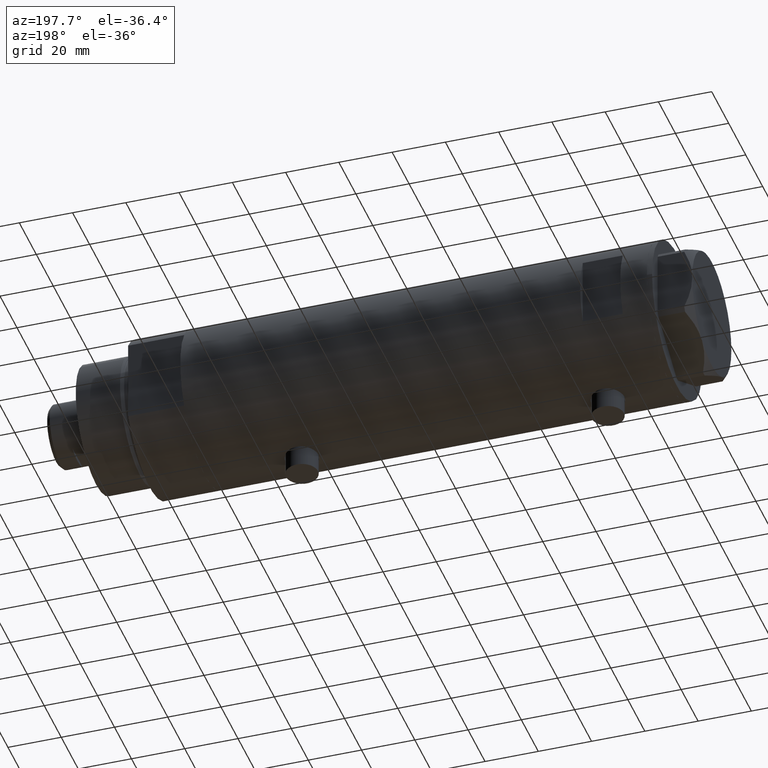
[diagram: clean part render]
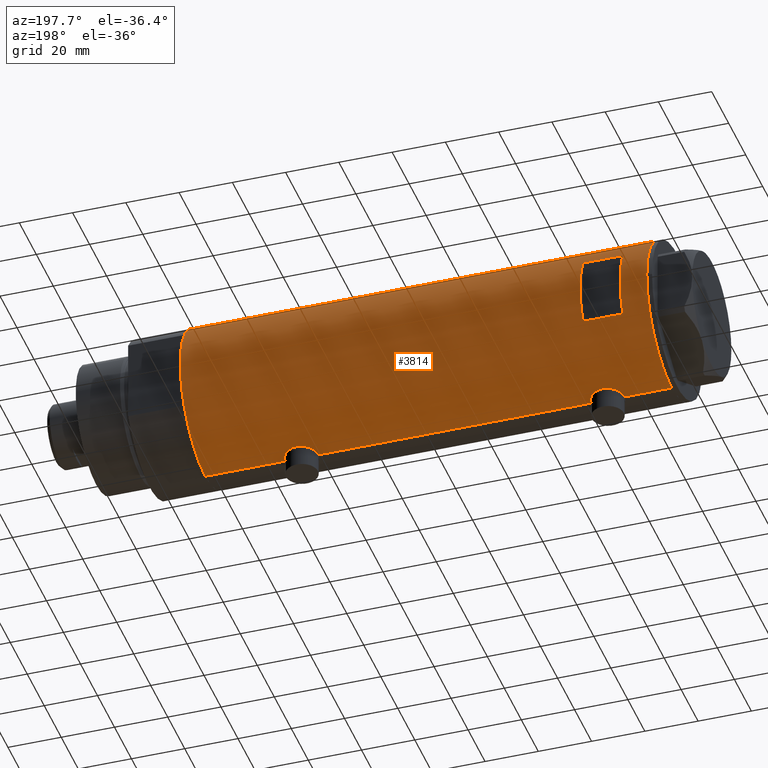
[diagram: same view with one face highlighted and labeled with its STEP entity id]
A machine part, auxiliary view. The second image highlights one B-rep face of the part: STEP entity #3814.
In plain terms, the highlighted cylindrical surface (partial cylindrical patch) has radius 29.5 mm, axis along (-1, -0, 0).
Its self-contained STEP definition (entity closure, byte-faithful):
#14 = VERTEX_POINT ( 'NONE', #2019 ) ;
#22 = LINE ( 'NONE', #2042, #1520 ) ;
#28 = CARTESIAN_POINT ( 'NONE',  ( -29.50000000000000355, 3.612706708267620518E-15, -57.55000000000000426 ) ) ;
#31 = CARTESIAN_POINT ( 'NONE',  ( 28.59637095282950270, 7.245897747848927040, 65.14872625722391319 ) ) ;
#32 = CARTESIAN_POINT ( 'NONE',  ( -29.37156641804198642, 2.775801885207113351, -45.68527430293367786 ) ) ;
#41 = EDGE_CURVE ( 'NONE', #1257, #3119, #2979, .T. ) ;
#52 = CARTESIAN_POINT ( 'NONE',  ( 29.50000000000000355, 0.2453482418156841816, 74.59999999999999432 ) ) ;
#53 = CARTESIAN_POINT ( 'NONE',  ( -28.94521404191311831, 5.694822755760264421, -53.88333046401345428 ) ) ;
#64 = EDGE_CURVE ( 'NONE', #4237, #1002, #198, .T. ) ;
#78 = CARTESIAN_POINT ( 'NONE',  ( 29.47533087885488712, 1.230190383163952239, 74.50252131767059893 ) ) ;
#79 = CARTESIAN_POINT ( 'NONE',  ( -28.83925158138408307, 6.209208576703538540, 62.77801617131193979 ) ) ;
#81 = CARTESIAN_POINT ( 'NONE',  ( -29.21045586191521082, 4.133246019522343495, -46.59426098433518604 ) ) ;
#104 = CARTESIAN_POINT ( 'NONE',  ( -28.87327190949138256, 6.049038945481236773, 61.97548271794827457 ) ) ;
#117 = CARTESIAN_POINT ( 'NONE',  ( 28.77649569280672992, 6.494415104660914650, 70.85934988816623559 ) ) ;
#118 = CARTESIAN_POINT ( 'NONE',  ( -28.99931529802531927, 5.412890550536861412, 60.46870800944782331 ) ) ;
#135 = CARTESIAN_POINT ( 'NONE',  ( -29.48289442777306846, 1.024392307325223905, 57.43111777471300883 ) ) ;
#154 = CARTESIAN_POINT ( 'NONE',  ( 29.48742029994219038, 0.9867701249543437969, -55.85094507494218163 ) ) ;
#162 = CARTESIAN_POINT ( 'NONE',  ( -29.48933702067640539, 0.8192029158410146783, 57.40049277733301381 ) ) ;
#163 = CARTESIAN_POINT ( 'NONE',  ( -29.50000000000000355, 3.612706708267620518E-15, -57.55000000000000426 ) ) ;
#164 = CARTESIAN_POINT ( 'NONE',  ( -29.50000000000000355, -3.685106651658548747E-16, 69.84999999999999432 ) ) ;
#188 = CARTESIAN_POINT ( 'NONE',  ( 29.08204711695421452, 4.951923910293528408, -54.03816021594297325 ) ) ;
#198 = CIRCLE ( 'NONE', #4027, 29.50000000000000355 ) ;
#209 = CARTESIAN_POINT ( 'NONE',  ( 29.47533087885489067, 1.230190383163956458, -40.99747868232940817 ) ) ;
#214 = AXIS2_PLACEMENT_3D ( 'NONE', #532, #1917, #4012 ) ;
#260 = CARTESIAN_POINT ( 'NONE',  ( 28.63233008736633778, 7.102474189478610533, -50.82185131238886555 ) ) ;
#269 = CARTESIAN_POINT ( 'NONE',  ( 29.48742029994219394, 0.9867701249543444630, 59.64905492505780416 ) ) ;
#279 = CARTESIAN_POINT ( 'NONE',  ( -29.45614208737133310, 1.620034288692375535, 69.63988643911609699 ) ) ;
#282 = ORIENTED_EDGE ( 'NONE', *, *, #3927, .T. ) ;
#308 = B_SPLINE_CURVE_WITH_KNOTS ( 'NONE', 3,
 ( #2743, #3381, #989, #2648, #279, #4428, #1333, #1033, #2703, #640, #2032, #665, #3784, #2056, #3428, #1717, #1132, #3872, #1590, #3323, #1781, #412, #79, #104, #2765, #2265, #458, #118, #1522, #2492, #2184, #798, #3245, #1562, #456, #3531, #492, #1484, #3950, #135, #162, #3578, #1860, #3217 ),
 .UNSPECIFIED., .F., .F.,
 ( 4, 2, 2, 2, 2, 2, 2, 2, 2, 2, 2, 2, 2, 2, 2, 2, 2, 2, 2, 2, 2, 4 ),
 ( 3.579711039243685734E-19, 0.001224749128302344029, 0.001837123692453515285, 0.002449498256604686758, 0.003674247384907013657, 0.004898996513209340556, 0.006123745641511668322, 0.007348494769813995221, 0.007960869333965159972, 0.008573243898116323855, 0.009797993026418609988, 0.01102274215472089959, 0.01224749128302318572, 0.01285986584717433920, 0.01347224041132549614, 0.01469698953962781697, 0.01592173866793014300, 0.01653411323208130515, 0.01714648779623246730, 0.01837123692453479160, 0.01898361148868595721, 0.01959598605283711936 ),
 .UNSPECIFIED. ) ;
#312 = DIRECTION ( 'NONE',  ( 1.000000000000000000, 0.000000000000000000, 0.000000000000000000 ) ) ;
#336 = ORIENTED_EDGE ( 'NONE', *, *, #64, .F. ) ;
#343 = CARTESIAN_POINT ( 'NONE',  ( 29.31463363472445849, 3.333180401682676930, 60.36343155316954068 ) ) ;
#360 = CARTESIAN_POINT ( 'NONE',  ( -29.50000000000000355, 3.612708057484692393E-15, -87.59999999999999432 ) ) ;
#388 = CARTESIAN_POINT ( 'NONE',  ( 29.50000000000000355, -8.867894669064240341E-21, 74.59999999999999432 ) ) ;
#389 = CARTESIAN_POINT ( 'NONE',  ( -29.01875661852155019, 5.308007315944003324, -54.60588370000890279 ) ) ;
#390 = B_SPLINE_CURVE_WITH_KNOTS ( 'NONE', 3,
 ( #4094, #4118, #269, #1663, #2070, #597, #2380, #343, #1731, #1000, #4418, #4079, #983, #3732, #633, #659, #2020, #1694, #3423, #31, #1844, #1780, #1104, #2475, #4187, #3846, #3200, #3464, #1801, #117, #1441, #2841, #2447, #3512, #3137, #699, #1503, #730, #4141, #2156, #1049, #78, #3487, #1485, #52, #388 ),
 .UNSPECIFIED., .F., .F.,
 ( 4, 2, 2, 2, 2, 2, 2, 2, 2, 2, 2, 2, 2, 2, 2, 2, 2, 2, 2, 2, 2, 2, 4 ),
 ( 2.075019889373263572E-18, 0.001471587963626213007, 0.002207381945439318427, 0.002943175927252423846, 0.004414763890878631650, 0.005150557872691736636, 0.005886351854504842489, 0.007357939818131036848, 0.008829527781757228605, 0.009565321763570345734, 0.01030111574538346113, 0.01177270370900965375, 0.01324429167263584638, 0.01471587963626204074, 0.01545167361807513358, 0.01618746759988822989, 0.01692326158170132794, 0.01765905556351441905, 0.01913064352714058391, 0.02060223149076674184, 0.02207381945439290671, 0.02280961343620598394, 0.02354540741801906811 ),
 .UNSPECIFIED. ) ;
#394 = EDGE_CURVE ( 'NONE', #2227, #14, #1330, .T. ) ;
#412 = CARTESIAN_POINT ( 'NONE',  ( -28.83028740688047620, 6.250162243045986443, 63.19353934091626002 ) ) ;
#436 = CARTESIAN_POINT ( 'NONE',  ( -28.86473101544359210, 6.089252369705496548, -49.87667050833969284 ) ) ;
#449 = CARTESIAN_POINT ( 'NONE',  ( 29.38138226830144006, 2.652609128011935269, -55.41954601959671578 ) ) ;
#456 = CARTESIAN_POINT ( 'NONE',  ( -29.33379699751450431, 3.132328395749495620, 58.18767835513889253 ) ) ;
#458 = CARTESIAN_POINT ( 'NONE',  ( -28.96258065965881912, 5.606121065329691788, 60.82948014931239555 ) ) ;
#472 = CARTESIAN_POINT ( 'NONE',  ( 12.96148139681573319, 26.49999999999999645, -87.59999999999999432 ) ) ;
#473 = CARTESIAN_POINT ( 'NONE',  ( -29.38727827406290416, 2.583363936682823603, -56.99478026128668517 ) ) ;
#492 = CARTESIAN_POINT ( 'NONE',  ( -29.38727827406289705, 2.583363936682820938, 57.90521973871332051 ) ) ;
#510 = CARTESIAN_POINT ( 'NONE',  ( 29.26131531204081426, 3.767377415172554311, -41.89654697428871799 ) ) ;
#515 = DIRECTION ( 'NONE',  ( 1.000000000000000000, -1.776356839400250267E-15, 0.000000000000000000 ) ) ;
#532 = CARTESIAN_POINT ( 'NONE',  ( 0.000000000000000000, 0.000000000000000000, -87.59999999999999432 ) ) ;
#535 = CARTESIAN_POINT ( 'NONE',  ( -12.96148139681574030, 26.50000000000000355, 62.60000000000001563 ) ) ;
#539 = CARTESIAN_POINT ( 'NONE',  ( -29.12318177724206691, 4.709191267490247412, -55.42971050241654751 ) ) ;
#557 = LINE ( 'NONE', #472, #1587 ) ;
#563 = CARTESIAN_POINT ( 'NONE',  ( -29.48289442777307201, 1.024392307325228124, -57.46888222528699686 ) ) ;
#565 = DIRECTION ( 'NONE',  ( 0.000000000000000000, 0.000000000000000000, 1.000000000000000000 ) ) ;
#577 = FACE_BOUND ( 'NONE', #1560, .T. ) ;
#581 = VERTEX_POINT ( 'NONE', #3719 ) ;
#590 = EDGE_CURVE ( 'NONE', #3221, #3844, #308, .T. ) ;
#597 = CARTESIAN_POINT ( 'NONE',  ( 29.40165444879503909, 2.418426732012822544, 59.99632943565210041 ) ) ;
#633 = CARTESIAN_POINT ( 'NONE',  ( 28.89325003604224307, 5.958922200807243996, 62.51915213504485536 ) ) ;
#640 = CARTESIAN_POINT ( 'NONE',  ( -29.25454443288368722, 3.812919888526638879, 68.56897379180909979 ) ) ;
#649 = DIRECTION ( 'NONE',  ( 0.000000000000000000, 0.000000000000000000, 1.000000000000000000 ) ) ;
#659 = CARTESIAN_POINT ( 'NONE',  ( 28.77473834757382321, 6.507156404236264180, 63.33837315939705093 ) ) ;
#665 = CARTESIAN_POINT ( 'NONE',  ( -29.12335997091252793, 4.707903814166463974, 67.73078007378802567 ) ) ;
#699 = CARTESIAN_POINT ( 'NONE',  ( 29.08308069045667565, 4.954707331652127955, 72.75173628376771262 ) ) ;
#730 = CARTESIAN_POINT ( 'NONE',  ( 29.26131531204080360, 3.767377415172555644, 73.60345302571126069 ) ) ;
#731 = CARTESIAN_POINT ( 'NONE',  ( -29.50000000000000355, -1.989795151372050188E-15, -45.04999999999999005 ) ) ;
#737 = DIRECTION ( 'NONE',  ( 0.000000000000000000, 0.000000000000000000, 1.000000000000000000 ) ) ;
#769 = CARTESIAN_POINT ( 'NONE',  ( 29.50000000000000355, 0.000000000000000000, -87.59999999999999432 ) ) ;
#793 = DIRECTION ( 'NONE',  ( 0.000000000000000000, 0.000000000000000000, 1.000000000000000000 ) ) ;
#798 = CARTESIAN_POINT ( 'NONE',  ( -29.21113960567726764, 4.128622307952521275, 58.88985466616444597 ) ) ;
#802 = CARTESIAN_POINT ( 'NONE',  ( -29.12335997091253148, 4.707903814166472856, -47.16921992621198001 ) ) ;
#824 = CARTESIAN_POINT ( 'NONE',  ( 29.50000000000000355, 0.000000000000000000, 87.59999999999999432 ) ) ;
#889 = CARTESIAN_POINT ( 'NONE',  ( -29.07940225710134996, 4.969011347753393260, -55.11269734470185000 ) ) ;
#902 = CARTESIAN_POINT ( 'NONE',  ( 28.95590528945748687, 5.641861744747095564, -43.45235088071117246 ) ) ;
#918 = CARTESIAN_POINT ( 'NONE',  ( 28.59637095282950625, 7.245897747848926151, -50.35127374277608681 ) ) ;
#943 = CARTESIAN_POINT ( 'NONE',  ( 28.62953349941190240, 7.116010646391488947, -45.98020539076898672 ) ) ;
#970 = CARTESIAN_POINT ( 'NONE',  ( 28.89325003604224307, 5.958922200807236891, -52.98084786495515175 ) ) ;
#983 = CARTESIAN_POINT ( 'NONE',  ( 29.05056090758569098, 5.132790299589558458, 61.62608273347917276 ) ) ;
#989 = CARTESIAN_POINT ( 'NONE',  ( -29.49128627113591605, 0.8212788586050359108, 69.80923124908871102 ) ) ;
#1000 = CARTESIAN_POINT ( 'NONE',  ( 29.17471722935868073, 4.373569479501278501, 61.00231157590981468 ) ) ;
#1002 = VERTEX_POINT ( 'NONE', #535 ) ;
#1033 = CARTESIAN_POINT ( 'NONE',  ( -29.37156641804199708, 2.775801885207113795, 69.21472569706632783 ) ) ;
#1049 = CARTESIAN_POINT ( 'NONE',  ( 29.43913092143246146, 1.954882548385545649, 74.35749234733351898 ) ) ;
#1052 = VERTEX_POINT ( 'NONE', #1379 ) ;
#1099 = EDGE_CURVE ( 'NONE', #1946, #1908, #22, .T. ) ;
#1104 = CARTESIAN_POINT ( 'NONE',  ( 28.53073993742369296, 7.499791908386148620, 66.60538051566959439 ) ) ;
#1127 = CARTESIAN_POINT ( 'NONE',  ( -28.96085629491409108, 5.616414220648541011, -48.52800360409992209 ) ) ;
#1132 = CARTESIAN_POINT ( 'NONE',  ( -28.90008889585329044, 5.919338933253946777, 65.61640207058047736 ) ) ;
#1134 = CARTESIAN_POINT ( 'NONE',  ( 29.50000000000000355, -8.867894669064240341E-21, 74.59999999999999432 ) ) ;
#1157 = LINE ( 'NONE', #769, #4256 ) ;
#1185 = CARTESIAN_POINT ( 'NONE',  ( -29.48933702067641249, 0.8192029158410176759, -57.49950722266699898 ) ) ;
#1205 = CARTESIAN_POINT ( 'NONE',  ( -29.37021410611214378, 2.770135525807589261, -56.90634069022830488 ) ) ;
#1212 = CARTESIAN_POINT ( 'NONE',  ( 28.98787507734748914, 5.475789924529796515, -43.26910956623376592 ) ) ;
#1238 = CARTESIAN_POINT ( 'NONE',  ( 29.50000000000000711, 0.2453482418156837930, -40.89999999999999858 ) ) ;
#1242 = CARTESIAN_POINT ( 'NONE',  ( 29.50000000000000355, -8.867894669064240341E-21, -40.89999999999999858 ) ) ;
#1257 = VERTEX_POINT ( 'NONE', #1134 ) ;
#1260 = CYLINDRICAL_SURFACE ( 'NONE', #214, 29.50000000000000355 ) ;
#1279 = CARTESIAN_POINT ( 'NONE',  ( 28.59328333056173221, 7.258376466535469085, -46.44875332515167798 ) ) ;
#1328 = ORIENTED_EDGE ( 'NONE', *, *, #3555, .F. ) ;
#1330 = LINE ( 'NONE', #2678, #3885 ) ;
#1333 = CARTESIAN_POINT ( 'NONE',  ( -29.41782704931130255, 2.208494778271264725, 69.45038297927175108 ) ) ;
#1372 = VERTEX_POINT ( 'NONE', #2576 ) ;
#1379 = CARTESIAN_POINT ( 'NONE',  ( 12.96148139681573319, 26.49999999999998934, 77.60000000000002274 ) ) ;
#1388 = AXIS2_PLACEMENT_3D ( 'NONE', #1633, #2584, #515 ) ;
#1394 = ORIENTED_EDGE ( 'NONE', *, *, #2202, .F. ) ;
#1410 = VERTEX_POINT ( 'NONE', #3037 ) ;
#1441 = CARTESIAN_POINT ( 'NONE',  ( 28.80468126786726302, 6.368639251981137228, 71.06860510682068366 ) ) ;
#1464 = CIRCLE ( 'NONE', #4049, 29.50000000000000355 ) ;
#1465 = VECTOR ( 'NONE', #649, 1000.000000000000000 ) ;
#1484 = CARTESIAN_POINT ( 'NONE',  ( -29.43341305963175003, 2.016871341298210663, 57.67025331001193678 ) ) ;
#1485 = CARTESIAN_POINT ( 'NONE',  ( 29.49693976195335665, 0.4910732786937788696, 74.58799094295621046 ) ) ;
#1486 = ORIENTED_EDGE ( 'NONE', *, *, #1099, .T. ) ;
#1487 = CARTESIAN_POINT ( 'NONE',  ( -29.07990598238133373, 4.966177878631063081, -47.48314968353489718 ) ) ;
#1498 = CARTESIAN_POINT ( 'NONE',  ( 29.17471722935868428, 4.373569479501278501, -54.49768842409016401 ) ) ;
#1503 = CARTESIAN_POINT ( 'NONE',  ( 29.14546206473281487, 4.578181670952602644, 73.06056091603291236 ) ) ;
#1504 = CARTESIAN_POINT ( 'NONE',  ( -28.87539346372184212, 6.038655803256923527, -49.67547335916925988 ) ) ;
#1520 = VECTOR ( 'NONE', #2686, 1000.000000000000000 ) ;
#1522 = CARTESIAN_POINT ( 'NONE',  ( -29.01875661852155019, 5.308007315944000659, 60.29411629999106736 ) ) ;
#1526 = CARTESIAN_POINT ( 'NONE',  ( -29.49787850362430675, 0.4089683628077651623, -57.54001026437015298 ) ) ;
#1545 = CARTESIAN_POINT ( 'NONE',  ( -29.43341305963175714, 2.016871341298211551, -57.22974668998805470 ) ) ;
#1553 = CARTESIAN_POINT ( 'NONE',  ( 28.77473834757381610, 6.507156404236260627, -52.16162684060293486 ) ) ;
#1560 = EDGE_LOOP ( 'NONE', ( #4445, #336, #1328, #1394 ) ) ;
#1562 = CARTESIAN_POINT ( 'NONE',  ( -29.31451746246149881, 3.307268797680012806, 58.29285158014997137 ) ) ;
#1571 = CARTESIAN_POINT ( 'NONE',  ( 28.80468126786726657, 6.368639251981141669, -44.43139489317929502 ) ) ;
#1587 = VECTOR ( 'NONE', #2286, 1000.000000000000000 ) ;
#1590 = CARTESIAN_POINT ( 'NONE',  ( -28.86473101544358499, 6.089252369705491219, 65.02332949166031995 ) ) ;
#1628 = CARTESIAN_POINT ( 'NONE',  ( 28.95615051861771860, 5.649234316505054032, -53.35715418746725192 ) ) ;
#1633 = CARTESIAN_POINT ( 'NONE',  ( 0.000000000000000000, 0.000000000000000000, 77.60000000000002274 ) ) ;
#1663 = CARTESIAN_POINT ( 'NONE',  ( 29.45150476095192360, 1.707859807438202315, 59.79292881343939570 ) ) ;
#1685 = CARTESIAN_POINT ( 'NONE',  ( -12.96148139681573319, 26.49999999999999645, -87.59999999999999432 ) ) ;
#1694 = CARTESIAN_POINT ( 'NONE',  ( 28.65280969280607692, 7.019670864411689415, 64.44786831316889675 ) ) ;
#1698 = DIRECTION ( 'NONE',  ( 0.000000000000000000, 0.000000000000000000, 1.000000000000000000 ) ) ;
#1702 = ORIENTED_EDGE ( 'NONE', *, *, #4096, .T. ) ;
#1717 = CARTESIAN_POINT ( 'NONE',  ( -28.91416466586725420, 5.850419487802255070, 65.80827647633630306 ) ) ;
#1728 = EDGE_CURVE ( 'NONE', #3119, #2939, #2823, .T. ) ;
#1729 = VECTOR ( 'NONE', #565, 1000.000000000000000 ) ;
#1731 = CARTESIAN_POINT ( 'NONE',  ( 29.26187100173485334, 3.763222966830670480, 60.59401741939379349 ) ) ;
#1780 = CARTESIAN_POINT ( 'NONE',  ( 28.54350045195475971, 7.451747857568897793, 66.11733997124500206 ) ) ;
#1781 = CARTESIAN_POINT ( 'NONE',  ( -28.83035796536222861, 6.249836767212677557, 64.01143494622724006 ) ) ;
#1801 = CARTESIAN_POINT ( 'NONE',  ( 28.72322018454531189, 6.726124749058830510, 70.42706852850997734 ) ) ;
#1829 = CARTESIAN_POINT ( 'NONE',  ( -28.83909818927744340, 6.209925900742502058, -50.48221924548004580 ) ) ;
#1837 = CARTESIAN_POINT ( 'NONE',  ( 29.26187100173485334, 3.763222966830669147, -54.90598258060620651 ) ) ;
#1844 = CARTESIAN_POINT ( 'NONE',  ( 28.58083212642745252, 7.306745240314150180, 65.39046330563792253 ) ) ;
#1846 = CARTESIAN_POINT ( 'NONE',  ( -28.90008889585328333, 5.919338933253951218, -49.28359792941950701 ) ) ;
#1860 = CARTESIAN_POINT ( 'NONE',  ( -29.49999999999999645, 0.2042768310961489142, 57.34999999999998010 ) ) ;
#1862 = CARTESIAN_POINT ( 'NONE',  ( -29.50000000000000355, 0.2042768310961517730, -57.55000000000001137 ) ) ;
#1907 = B_SPLINE_CURVE_WITH_KNOTS ( 'NONE', 3,
 ( #2151, #3523, #154, #3173, #2170, #3550, #449, #4241, #1837, #1498, #4065, #188, #3609, #1628, #970, #1553, #4375, #3299, #260, #918, #2257, #4034, #2924, #3669, #1965, #1279, #943, #2991, #3361, #1985, #1571, #2945, #4305, #902, #1212, #2580, #2650, #510, #3964, #4328, #3634, #209, #3278, #4351, #1238, #2279 ),
 .UNSPECIFIED., .F., .F.,
 ( 4, 2, 2, 2, 2, 2, 2, 2, 2, 2, 2, 2, 2, 2, 2, 2, 2, 2, 2, 2, 2, 2, 4 ),
 ( 1.324216582005999085E-18, 0.001471587963626213007, 0.002207381945439318427, 0.002943175927252423846, 0.004414763890878634252, 0.005150557872691738370, 0.005886351854504841621, 0.007357939818131030776, 0.008829527781757219931, 0.009565321763570316244, 0.01030111574538341256, 0.01177270370900960171, 0.01324429167263579260, 0.01471587963626198176, 0.01545167361807507807, 0.01618746759988817091, 0.01692326158170126896, 0.01765905556351436007, 0.01913064352714053881, 0.02060223149076671756, 0.02207381945439289284, 0.02280961343620598047, 0.02354540741801906811 ),
 .UNSPECIFIED. ) ;
#1908 = VERTEX_POINT ( 'NONE', #28 ) ;
#1917 = DIRECTION ( 'NONE',  ( 0.000000000000000000, 0.000000000000000000, 1.000000000000000000 ) ) ;
#1931 = ORIENTED_EDGE ( 'NONE', *, *, #4439, .F. ) ;
#1946 = VERTEX_POINT ( 'NONE', #360 ) ;
#1949 = DIRECTION ( 'NONE',  ( 1.000000000000000000, 0.000000000000000000, 0.000000000000000000 ) ) ;
#1950 = CARTESIAN_POINT ( 'NONE',  ( -29.33379699751449365, 3.132328395749501393, -56.71232164486110605 ) ) ;
#1965 = CARTESIAN_POINT ( 'NONE',  ( 28.54372006395177763, 7.450900983269891142, -47.41234264364084794 ) ) ;
#1985 = CARTESIAN_POINT ( 'NONE',  ( 28.77649569280673703, 6.494415104660911986, -44.64065011183377152 ) ) ;
#2012 = LINE ( 'NONE', #4105, #4192 ) ;
#2019 = CARTESIAN_POINT ( 'NONE',  ( 29.50000000000000355, -2.136503572369537054E-15, 59.59999999999999432 ) ) ;
#2020 = CARTESIAN_POINT ( 'NONE',  ( 28.72066933684369516, 6.738715173607845443, 63.77163044046444185 ) ) ;
#2032 = CARTESIAN_POINT ( 'NONE',  ( -29.21045586191520371, 4.133246019522335502, 68.30573901566479833 ) ) ;
#2042 = CARTESIAN_POINT ( 'NONE',  ( -29.50000000000000355, 3.612708057484692393E-15, -87.59999999999999432 ) ) ;
#2056 = CARTESIAN_POINT ( 'NONE',  ( -28.99817753551064925, 5.423057650933436058, 66.73396151462593195 ) ) ;
#2069 = EDGE_CURVE ( 'NONE', #1410, #581, #1157, .T. ) ;
#2070 = CARTESIAN_POINT ( 'NONE',  ( 29.43668864566816268, 1.946133027943908855, 59.85269087298998869 ) ) ;
#2137 = CARTESIAN_POINT ( 'NONE',  ( -29.50000000000000711, 0.4142160563134685836, -45.04999999999999716 ) ) ;
#2151 = CARTESIAN_POINT ( 'NONE',  ( 29.50000000000000355, -1.363453657738827866E-15, -55.89999999999999858 ) ) ;
#2156 = CARTESIAN_POINT ( 'NONE',  ( 29.40387556522357571, 2.422597899785625231, 74.21486039769831677 ) ) ;
#2170 = CARTESIAN_POINT ( 'NONE',  ( 29.43668864566815913, 1.946133027943908633, -55.64730912700998999 ) ) ;
#2184 = CARTESIAN_POINT ( 'NONE',  ( -29.12318177724206336, 4.709191267490247412, 59.47028949758345817 ) ) ;
#2186 = CARTESIAN_POINT ( 'NONE',  ( -28.91416466586724354, 5.850419487802259511, -49.09172352366371683 ) ) ;
#2202 = EDGE_CURVE ( 'NONE', #2632, #1052, #4117, .T. ) ;
#2227 = VERTEX_POINT ( 'NONE', #1242 ) ;
#2257 = CARTESIAN_POINT ( 'NONE',  ( 28.58083212642745607, 7.306745240314146628, -50.10953669436206326 ) ) ;
#2265 = CARTESIAN_POINT ( 'NONE',  ( -28.94521404191312541, 5.694822755760258204, 61.01666953598656562 ) ) ;
#2279 = CARTESIAN_POINT ( 'NONE',  ( 29.50000000000000355, -8.867894669064240341E-21, -40.89999999999999858 ) ) ;
#2286 = DIRECTION ( 'NONE',  ( -0.000000000000000000, -0.000000000000000000, -1.000000000000000000 ) ) ;
#2342 = DIRECTION ( 'NONE',  ( 0.000000000000000000, 1.000000000000000000, -4.704334850106595203E-15 ) ) ;
#2370 = CARTESIAN_POINT ( 'NONE',  ( 0.000000000000000000, 0.000000000000000000, -87.59999999999999432 ) ) ;
#2380 = CARTESIAN_POINT ( 'NONE',  ( 29.38138226830143651, 2.652609128011935713, 60.08045398040327001 ) ) ;
#2422 = EDGE_CURVE ( 'NONE', #1002, #2632, #4070, .T. ) ;
#2438 = ORIENTED_EDGE ( 'NONE', *, *, #2472, .T. ) ;
#2447 = CARTESIAN_POINT ( 'NONE',  ( 28.89369475765812112, 5.952264974793427754, 71.66950516186246034 ) ) ;
#2472 = EDGE_CURVE ( 'NONE', #1372, #3844, #2012, .T. ) ;
#2475 = CARTESIAN_POINT ( 'NONE',  ( 28.53063088452983465, 7.500206755597514707, 67.58828856904807481 ) ) ;
#2492 = CARTESIAN_POINT ( 'NONE',  ( -29.07940225710135351, 4.969011347753393260, 59.78730265529816990 ) ) ;
#2535 = CARTESIAN_POINT ( 'NONE',  ( -29.33500454540941149, 3.134363790739244759, -45.87737865536319504 ) ) ;
#2540 = LINE ( 'NONE', #3855, #2746 ) ;
#2576 = CARTESIAN_POINT ( 'NONE',  ( -29.50000000000000355, -1.989795151372050188E-15, -45.04999999999999005 ) ) ;
#2580 = CARTESIAN_POINT ( 'NONE',  ( 29.08308069045668631, 4.954707331652121738, -42.74826371623226606 ) ) ;
#2584 = DIRECTION ( 'NONE',  ( -0.000000000000000000, -0.000000000000000000, -1.000000000000000000 ) ) ;
#2591 = DIRECTION ( 'NONE',  ( 0.000000000000000000, 0.000000000000000000, 1.000000000000000000 ) ) ;
#2616 = CARTESIAN_POINT ( 'NONE',  ( 0.000000000000000000, 0.000000000000000000, 87.59999999999999432 ) ) ;
#2617 = CARTESIAN_POINT ( 'NONE',  ( -29.21113960567726409, 4.128622307952523052, -56.01014533383550997 ) ) ;
#2631 = CARTESIAN_POINT ( 'NONE',  ( -29.50000000000000355, 3.612706708236066082E-15, 57.34999999999998721 ) ) ;
#2632 = VERTEX_POINT ( 'NONE', #2800 ) ;
#2648 = CARTESIAN_POINT ( 'NONE',  ( -29.46640581083894261, 1.421634556901801627, 69.68958891089418728 ) ) ;
#2650 = CARTESIAN_POINT ( 'NONE',  ( 29.14546206473282197, 4.578181670952601756, -42.43943908396708764 ) ) ;
#2678 = CARTESIAN_POINT ( 'NONE',  ( 29.50000000000000355, 0.000000000000000000, -87.59999999999999432 ) ) ;
#2686 = DIRECTION ( 'NONE',  ( 0.000000000000000000, 0.000000000000000000, 1.000000000000000000 ) ) ;
#2703 = CARTESIAN_POINT ( 'NONE',  ( -29.33500454540941149, 3.134363790739238542, 69.02262134463678933 ) ) ;
#2705 = ORIENTED_EDGE ( 'NONE', *, *, #394, .F. ) ;
#2743 = CARTESIAN_POINT ( 'NONE',  ( -29.50000000000000355, -3.685106651658548747E-16, 69.84999999999999432 ) ) ;
#2746 = VECTOR ( 'NONE', #737, 1000.000000000000000 ) ;
#2765 = CARTESIAN_POINT ( 'NONE',  ( -28.89816269917384872, 5.930588606439750166, 61.58529684457829489 ) ) ;
#2789 = CARTESIAN_POINT ( 'NONE',  ( -29.41782704931129899, 2.208494778271262948, -45.44961702072823329 ) ) ;
#2792 = EDGE_LOOP ( 'NONE', ( #282, #1486, #1931, #2438, #3266, #1702, #3606, #3965, #3953, #2705, #2796, #2925 ) ) ;
#2796 = ORIENTED_EDGE ( 'NONE', *, *, #3791, .F. ) ;
#2800 = CARTESIAN_POINT ( 'NONE',  ( -12.96148139681573319, 26.49999999999998934, 77.60000000000002274 ) ) ;
#2823 = CIRCLE ( 'NONE', #3824, 29.50000000000000355 ) ;
#2841 = CARTESIAN_POINT ( 'NONE',  ( 28.86328010881651451, 6.097564286278104539, 71.47368290922693745 ) ) ;
#2858 = CARTESIAN_POINT ( 'NONE',  ( -29.25454443288369433, 3.812919888526644652, -46.33102620819088457 ) ) ;
#2872 = CARTESIAN_POINT ( 'NONE',  ( -28.89816269917384162, 5.930588606439753718, -53.31470315542169658 ) ) ;
#2918 = CARTESIAN_POINT ( 'NONE',  ( 12.96148139681571898, 26.50000000000000355, 62.60000000000001563 ) ) ;
#2924 = CARTESIAN_POINT ( 'NONE',  ( 28.53073993742368586, 7.499791908386146844, -48.89461948433040561 ) ) ;
#2925 = ORIENTED_EDGE ( 'NONE', *, *, #2069, .F. ) ;
#2939 = VERTEX_POINT ( 'NONE', #3039 ) ;
#2945 = CARTESIAN_POINT ( 'NONE',  ( 28.86328010881652872, 6.097564286278109869, -44.02631709077303412 ) ) ;
#2979 = LINE ( 'NONE', #4364, #1729 ) ;
#2991 = CARTESIAN_POINT ( 'NONE',  ( 28.69800960089390074, 6.832546664705480666, -45.29724969708693294 ) ) ;
#3000 = DIRECTION ( 'NONE',  ( 0.000000000000000000, 4.625929269271487689E-15, 1.000000000000000000 ) ) ;
#3037 = CARTESIAN_POINT ( 'NONE',  ( 29.50000000000000355, 0.000000000000000000, -87.59999999999999432 ) ) ;
#3039 = CARTESIAN_POINT ( 'NONE',  ( -29.50000000000000355, 3.612708057484692393E-15, 87.59999999999999432 ) ) ;
#3049 = DIRECTION ( 'NONE',  ( 0.000000000000000000, 0.000000000000000000, 1.000000000000000000 ) ) ;
#3117 = CARTESIAN_POINT ( 'NONE',  ( -28.83925158138407596, 6.209208576703542981, -52.12198382868806590 ) ) ;
#3119 = VERTEX_POINT ( 'NONE', #824 ) ;
#3137 = CARTESIAN_POINT ( 'NONE',  ( 28.98787507734748914, 5.475789924529800956, 72.23089043376626250 ) ) ;
#3173 = CARTESIAN_POINT ( 'NONE',  ( 29.45150476095192360, 1.707859807438201871, -55.70707118656059720 ) ) ;
#3185 = CARTESIAN_POINT ( 'NONE',  ( -28.83035796536222861, 6.249836767212684663, -50.88856505377280115 ) ) ;
#3200 = CARTESIAN_POINT ( 'NONE',  ( 28.62953349941190595, 7.116010646391488947, 69.51979460923099907 ) ) ;
#3201 = CARTESIAN_POINT ( 'NONE',  ( -29.45614208737134732, 1.620034288692378199, -45.26011356088388737 ) ) ;
#3217 = CARTESIAN_POINT ( 'NONE',  ( -29.50000000000000355, 3.612706708236066082E-15, 57.34999999999998721 ) ) ;
#3221 = VERTEX_POINT ( 'NONE', #164 ) ;
#3245 = CARTESIAN_POINT ( 'NONE',  ( -29.25435602127558354, 3.814249285079249319, 58.63216270466007529 ) ) ;
#3266 = ORIENTED_EDGE ( 'NONE', *, *, #590, .F. ) ;
#3278 = CARTESIAN_POINT ( 'NONE',  ( 29.48463566286631377, 0.9832945201638395583, -40.96062548237706835 ) ) ;
#3284 = B_SPLINE_CURVE_WITH_KNOTS ( 'NONE', 3,
 ( #731, #2137, #3533, #4189, #3201, #3847, #2789, #32, #2535, #2858, #81, #802, #1487, #4210, #1127, #2186, #1846, #1504, #436, #1829, #3185, #4230, #3117, #4164, #2872, #53, #3825, #3488, #389, #889, #539, #2617, #3979, #4297, #1950, #1205, #473, #1545, #3289, #563, #1185, #1526, #1862, #163 ),
 .UNSPECIFIED., .F., .F.,
 ( 4, 2, 2, 2, 2, 2, 2, 2, 2, 2, 2, 2, 2, 2, 2, 2, 2, 2, 2, 2, 2, 4 ),
 ( 1.932886166535861628E-18, 0.001224749128302346848, 0.001837123692453517237, 0.002449498256604687625, 0.003674247384907027535, 0.004898996513209368311, 0.006123745641511708221, 0.007348494769814048130, 0.007960869333965210279, 0.008573243898116372427, 0.009797993026418693255, 0.01102274215472101582, 0.01224749128302333664, 0.01285986584717448838, 0.01347224041132563666, 0.01469698953962794014, 0.01592173866793024709, 0.01653411323208139536, 0.01714648779623254710, 0.01837123692453484017, 0.01898361148868598497, 0.01959598605283713324 ),
 .UNSPECIFIED. ) ;
#3289 = CARTESIAN_POINT ( 'NONE',  ( -29.45783481716064856, 1.627188261681552284, -57.34836410908944515 ) ) ;
#3299 = CARTESIAN_POINT ( 'NONE',  ( 28.65280969280606982, 7.019670864411686750, -51.05213168683109615 ) ) ;
#3323 = CARTESIAN_POINT ( 'NONE',  ( -28.83909818927744695, 6.209925900742497618, 64.41778075451992436 ) ) ;
#3361 = CARTESIAN_POINT ( 'NONE',  ( 28.72322018454529768, 6.726124749058826957, -45.07293147149000845 ) ) ;
#3381 = CARTESIAN_POINT ( 'NONE',  ( -29.50000000000000355, 0.4142160563134685836, 69.84999999999999432 ) ) ;
#3419 = EDGE_CURVE ( 'NONE', #14, #1257, #390, .T. ) ;
#3423 = CARTESIAN_POINT ( 'NONE',  ( 28.63233008736634133, 7.102474189478613198, 64.67814868761114155 ) ) ;
#3428 = CARTESIAN_POINT ( 'NONE',  ( -28.96085629491409819, 5.616414220648535682, 66.37199639590009781 ) ) ;
#3464 = CARTESIAN_POINT ( 'NONE',  ( 28.69800960089391140, 6.832546664705483330, 70.20275030291304574 ) ) ;
#3487 = CARTESIAN_POINT ( 'NONE',  ( 29.48463566286631377, 0.9832945201638393362, 74.53937451762291744 ) ) ;
#3488 = CARTESIAN_POINT ( 'NONE',  ( -28.99931529802529795, 5.412890550536865852, -54.43129199055216816 ) ) ;
#3512 = CARTESIAN_POINT ( 'NONE',  ( 28.95590528945748687, 5.641861744747097340, 72.04764911928884885 ) ) ;
#3523 = CARTESIAN_POINT ( 'NONE',  ( 29.50000000000000711, 0.4977435627019808351, -55.89999999999999147 ) ) ;
#3531 = CARTESIAN_POINT ( 'NONE',  ( -29.37021410611213312, 2.770135525807581711, 57.99365930977168659 ) ) ;
#3533 = CARTESIAN_POINT ( 'NONE',  ( -29.49128627113592316, 0.8212788586050391304, -45.09076875091126624 ) ) ;
#3550 = CARTESIAN_POINT ( 'NONE',  ( 29.40165444879503909, 2.418426732012822100, -55.50367056434786406 ) ) ;
#3555 = EDGE_CURVE ( 'NONE', #1052, #4237, #557, .T. ) ;
#3578 = CARTESIAN_POINT ( 'NONE',  ( -29.49787850362430319, 0.4089683628077612210, 57.35998973562983849 ) ) ;
#3606 = ORIENTED_EDGE ( 'NONE', *, *, #1728, .F. ) ;
#3609 = CARTESIAN_POINT ( 'NONE',  ( 29.05056090758568388, 5.132790299589556682, -53.87391726652084145 ) ) ;
#3634 = CARTESIAN_POINT ( 'NONE',  ( 29.43913092143246146, 1.954882548385549423, -41.14250765266648813 ) ) ;
#3669 = CARTESIAN_POINT ( 'NONE',  ( 28.53063088452982043, 7.500206755597514707, -47.91171143095193230 ) ) ;
#3719 = CARTESIAN_POINT ( 'NONE',  ( 29.50000000000000355, -1.363453657738827866E-15, -55.89999999999999858 ) ) ;
#3720 = DIRECTION ( 'NONE',  ( 0.000000000000000000, 0.000000000000000000, 1.000000000000000000 ) ) ;
#3732 = CARTESIAN_POINT ( 'NONE',  ( 28.95615051861771860, 5.649234316505054920, 62.14284581253274098 ) ) ;
#3784 = CARTESIAN_POINT ( 'NONE',  ( -29.07990598238132662, 4.966177878631055087, 67.41685031646507298 ) ) ;
#3791 = EDGE_CURVE ( 'NONE', #581, #2227, #1907, .T. ) ;
#3814 = ADVANCED_FACE ( 'NONE', ( #577, #3991 ), #1260, .T. ) ;
#3824 = AXIS2_PLACEMENT_3D ( 'NONE', #2616, #2591, #1949 ) ;
#3825 = CARTESIAN_POINT ( 'NONE',  ( -28.96258065965880846, 5.606121065329696229, -54.07051985068762434 ) ) ;
#3844 = VERTEX_POINT ( 'NONE', #2631 ) ;
#3846 = CARTESIAN_POINT ( 'NONE',  ( 28.59328333056173221, 7.258376466535471749, 69.05124667484832912 ) ) ;
#3847 = CARTESIAN_POINT ( 'NONE',  ( -29.43187585711095267, 2.013330896687710592, -45.37959139970892863 ) ) ;
#3855 = CARTESIAN_POINT ( 'NONE',  ( -29.50000000000000355, 3.612708057484692393E-15, -87.59999999999999432 ) ) ;
#3872 = CARTESIAN_POINT ( 'NONE',  ( -28.87539346372185634, 6.038655803256916421, 65.22452664083074581 ) ) ;
#3885 = VECTOR ( 'NONE', #1698, 1000.000000000000000 ) ;
#3927 = EDGE_CURVE ( 'NONE', #1410, #1946, #1464, .T. ) ;
#3950 = CARTESIAN_POINT ( 'NONE',  ( -29.45783481716065211, 1.627188261681551396, 57.55163589091055343 ) ) ;
#3953 = ORIENTED_EDGE ( 'NONE', *, *, #3419, .F. ) ;
#3964 = CARTESIAN_POINT ( 'NONE',  ( 29.31521205951408859, 3.327945423969223881, -41.66093490772912133 ) ) ;
#3965 = ORIENTED_EDGE ( 'NONE', *, *, #41, .F. ) ;
#3979 = CARTESIAN_POINT ( 'NONE',  ( -29.25435602127558354, 3.814249285079252427, -56.26783729533990908 ) ) ;
#3991 = FACE_OUTER_BOUND ( 'NONE', #2792, .T. ) ;
#4012 = DIRECTION ( 'NONE',  ( 1.000000000000000000, 0.000000000000000000, 0.000000000000000000 ) ) ;
#4027 = AXIS2_PLACEMENT_3D ( 'NONE', #4114, #3000, #2342 ) ;
#4034 = CARTESIAN_POINT ( 'NONE',  ( 28.54350045195475971, 7.451747857568896016, -49.38266002875501925 ) ) ;
#4049 = AXIS2_PLACEMENT_3D ( 'NONE', #2370, #3720, #312 ) ;
#4065 = CARTESIAN_POINT ( 'NONE',  ( 29.14416130131007421, 4.572185141625601190, -54.35025411765555248 ) ) ;
#4070 = LINE ( 'NONE', #1685, #1465 ) ;
#4079 = CARTESIAN_POINT ( 'NONE',  ( 29.08204711695421452, 4.951923910293527520, 61.46183978405700543 ) ) ;
#4094 = CARTESIAN_POINT ( 'NONE',  ( 29.50000000000000355, -2.136503572369537054E-15, 59.59999999999999432 ) ) ;
#4096 = EDGE_CURVE ( 'NONE', #3221, #2939, #2540, .T. ) ;
#4105 = CARTESIAN_POINT ( 'NONE',  ( -29.50000000000000355, 3.612708057484692393E-15, -87.59999999999999432 ) ) ;
#4114 = CARTESIAN_POINT ( 'NONE',  ( 0.000000000000000000, 0.000000000000000000, 62.60000000000011511 ) ) ;
#4117 = CIRCLE ( 'NONE', #1388, 29.50000000000000355 ) ;
#4118 = CARTESIAN_POINT ( 'NONE',  ( 29.50000000000000711, 0.4977435627019807241, 59.60000000000000853 ) ) ;
#4141 = CARTESIAN_POINT ( 'NONE',  ( 29.31521205951408504, 3.327945423969213223, 73.83906509227089998 ) ) ;
#4164 = CARTESIAN_POINT ( 'NONE',  ( -28.87327190949136835, 6.049038945481238549, -52.92451728205170980 ) ) ;
#4187 = CARTESIAN_POINT ( 'NONE',  ( 28.54372006395177763, 7.450900983269892031, 68.08765735635913074 ) ) ;
#4189 = CARTESIAN_POINT ( 'NONE',  ( -29.46640581083894261, 1.421634556901805402, -45.21041108910578998 ) ) ;
#4192 = VECTOR ( 'NONE', #3049, 1000.000000000000000 ) ;
#4210 = CARTESIAN_POINT ( 'NONE',  ( -28.99817753551065280, 5.423057650933445828, -48.16603848537405952 ) ) ;
#4230 = CARTESIAN_POINT ( 'NONE',  ( -28.83028740688047620, 6.250162243045991772, -51.70646065908373856 ) ) ;
#4237 = VERTEX_POINT ( 'NONE', #2918 ) ;
#4241 = CARTESIAN_POINT ( 'NONE',  ( 29.31463363472445849, 3.333180401682678262, -55.13656844683045222 ) ) ;
#4256 = VECTOR ( 'NONE', #793, 1000.000000000000000 ) ;
#4297 = CARTESIAN_POINT ( 'NONE',  ( -29.31451746246149526, 3.307268797680013694, -56.60714841985004142 ) ) ;
#4305 = CARTESIAN_POINT ( 'NONE',  ( 28.89369475765811757, 5.952264974793427754, -43.83049483813753966 ) ) ;
#4328 = CARTESIAN_POINT ( 'NONE',  ( 29.40387556522357571, 2.422597899785629227, -41.28513960230168323 ) ) ;
#4351 = CARTESIAN_POINT ( 'NONE',  ( 29.49693976195336020, 0.4910732786937798133, -40.91200905704376112 ) ) ;
#4364 = CARTESIAN_POINT ( 'NONE',  ( 29.50000000000000355, 0.000000000000000000, -87.59999999999999432 ) ) ;
#4375 = CARTESIAN_POINT ( 'NONE',  ( 28.72066933684370227, 6.738715173607846332, -51.72836955953554394 ) ) ;
#4418 = CARTESIAN_POINT ( 'NONE',  ( 29.14416130131008842, 4.572185141625602078, 61.14974588234445463 ) ) ;
#4428 = CARTESIAN_POINT ( 'NONE',  ( -29.43187585711094911, 2.013330896687708815, 69.52040860029104863 ) ) ;
#4439 = EDGE_CURVE ( 'NONE', #1372, #1908, #3284, .T. ) ;
#4445 = ORIENTED_EDGE ( 'NONE', *, *, #2422, .F. ) ;